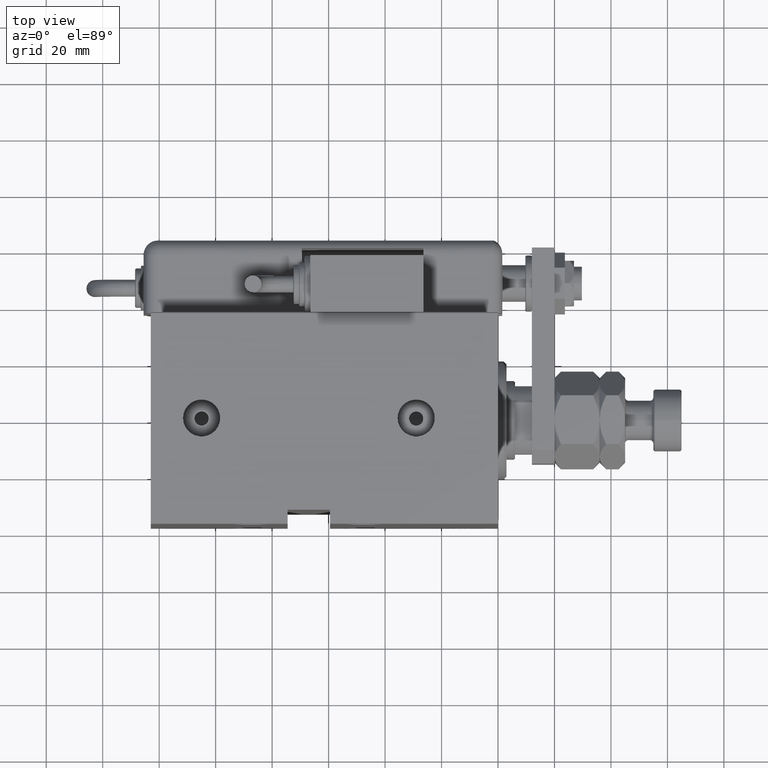
[diagram: clean part render]
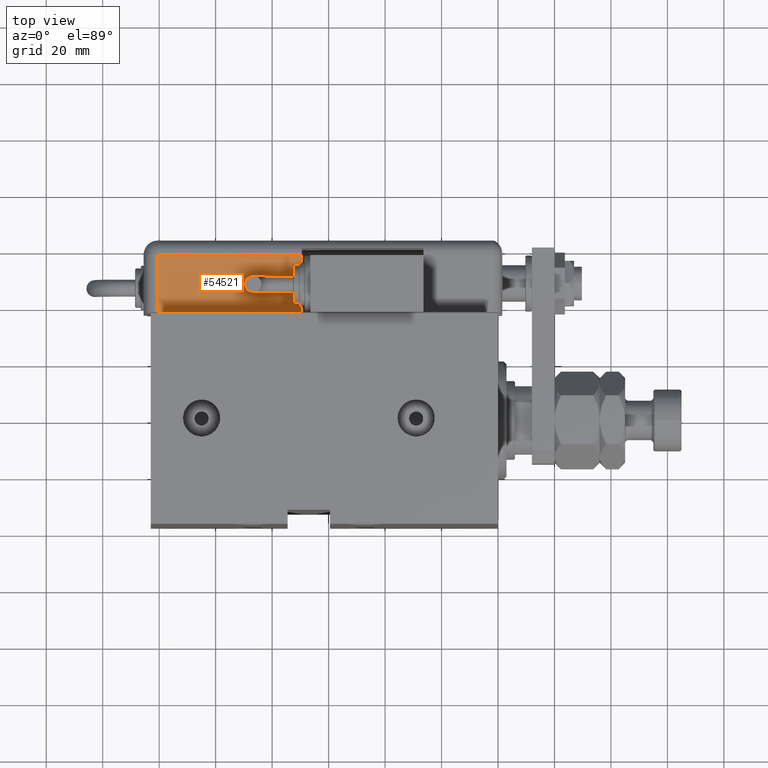
[diagram: same view with one face highlighted and labeled with its STEP entity id]
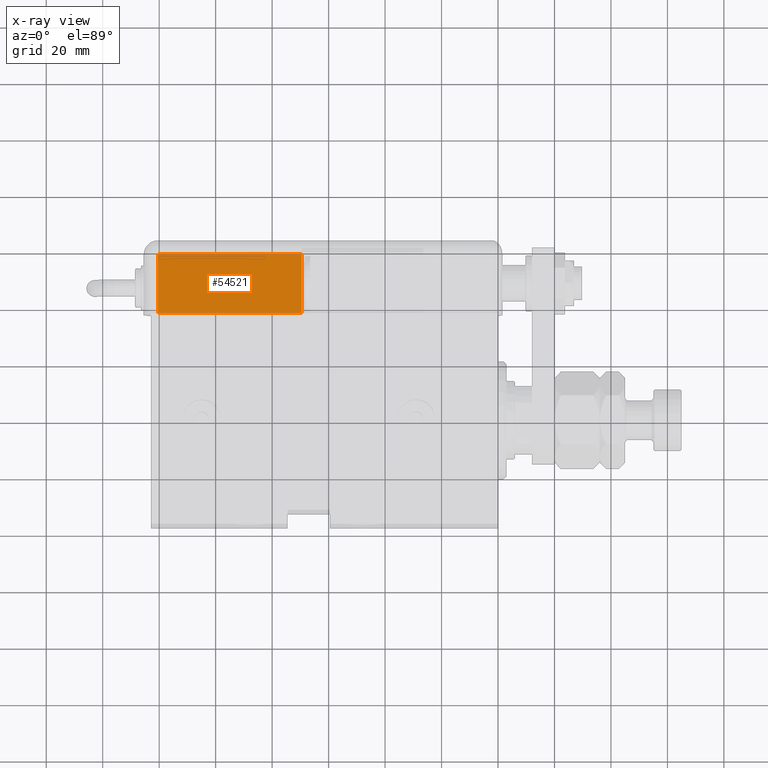
[diagram: x-ray of the same camera — body ghosted, the highlighted face saturated]
A machine part, top view. The second image highlights one B-rep face of the part: STEP entity #54521.
The next image is the same camera in x-ray: the body ghosted, the highlighted face saturated — about 0% of this face is hidden behind the body in this view.
In plain terms, the highlighted planar face has unit normal (0, 0, -1).
Its self-contained STEP definition (entity closure, byte-faithful):
#19 = VERTEX_POINT ( 'NONE', #40764 ) ;
#3383 = DIRECTION ( 'NONE',  ( 0.000000000000000000, -1.000000000000000000, 0.000000000000000000 ) ) ;
#4003 = LINE ( 'NONE', #46204, #25684 ) ;
#6605 = AXIS2_PLACEMENT_3D ( 'NONE', #61586, #52210, #41023 ) ;
#7364 = DIRECTION ( 'NONE',  ( 0.000000000000000000, -1.000000000000000000, 0.000000000000000000 ) ) ;
#8719 = LINE ( 'NONE', #55620, #37166 ) ;
#9427 = ORIENTED_EDGE ( 'NONE', *, *, #57126, .T. ) ;
#10534 = EDGE_CURVE ( 'NONE', #19, #34282, #8719, .T. ) ;
#10996 = VECTOR ( 'NONE', #26390, 1000.000000000000000 ) ;
#16274 = CARTESIAN_POINT ( 'NONE',  ( -28.99999999999999645, 20.79999999999998295, 5.000000000000004441 ) ) ;
#16928 = FACE_OUTER_BOUND ( 'NONE', #51042, .T. ) ;
#17443 = DIRECTION ( 'NONE',  ( -0.000000000000000000, -0.000000000000000000, -1.000000000000000000 ) ) ;
#17888 = CARTESIAN_POINT ( 'NONE',  ( -28.99999999999999645, 20.79999999999998295, 56.00000000000000711 ) ) ;
#25288 = CARTESIAN_POINT ( 'NONE',  ( -28.99999999999999645, -9.421223957302265857E-15, 5.000000000000004441 ) ) ;
#25303 = VECTOR ( 'NONE', #7364, 1000.000000000000000 ) ;
#25409 = ORIENTED_EDGE ( 'NONE', *, *, #30251, .T. ) ;
#25684 = VECTOR ( 'NONE', #3383, 1000.000000000000000 ) ;
#26390 = DIRECTION ( 'NONE',  ( 0.000000000000000000, 0.000000000000000000, -1.000000000000000000 ) ) ;
#30251 = EDGE_CURVE ( 'NONE', #40592, #40849, #55493, .T. ) ;
#34282 = VERTEX_POINT ( 'NONE', #25288 ) ;
#35681 = ORIENTED_EDGE ( 'NONE', *, *, #10534, .F. ) ;
#37166 = VECTOR ( 'NONE', #17443, 1000.000000000000000 ) ;
#40592 = VERTEX_POINT ( 'NONE', #17888 ) ;
#40764 = CARTESIAN_POINT ( 'NONE',  ( -28.99999999999999645, -9.421223957302264279E-15, 56.00000000000000711 ) ) ;
#40849 = VERTEX_POINT ( 'NONE', #16274 ) ;
#41023 = DIRECTION ( 'NONE',  ( -0.000000000000000000, 0.000000000000000000, -1.000000000000000000 ) ) ;
#42513 = PLANE ( 'NONE',  #6605 ) ;
#42832 = EDGE_CURVE ( 'NONE', #40592, #19, #55200, .T. ) ;
#46204 = CARTESIAN_POINT ( 'NONE',  ( -28.99999999999999645, -1.040834085586084257E-14, 5.000000000000004441 ) ) ;
#51042 = EDGE_LOOP ( 'NONE', ( #35681, #54145, #25409, #9427 ) ) ;
#51738 = CARTESIAN_POINT ( 'NONE',  ( -28.99999999999999645, 20.79999999999998295, 124.0000000000000000 ) ) ;
#52210 = DIRECTION ( 'NONE',  ( 1.000000000000000000, 0.000000000000000000, -0.000000000000000000 ) ) ;
#54145 = ORIENTED_EDGE ( 'NONE', *, *, #42832, .F. ) ;
#54521 = ADVANCED_FACE ( 'NONE', ( #16928 ), #42513, .F. ) ;
#54585 = CARTESIAN_POINT ( 'NONE',  ( -28.99999999999999645, 22.99999999999998934, 56.00000000000000711 ) ) ;
#55200 = LINE ( 'NONE', #54585, #25303 ) ;
#55493 = LINE ( 'NONE', #51738, #10996 ) ;
#55620 = CARTESIAN_POINT ( 'NONE',  ( -28.99999999999999645, -9.421223957302265857E-15, 124.0000000000000000 ) ) ;
#57126 = EDGE_CURVE ( 'NONE', #40849, #34282, #4003, .T. ) ;
#61586 = CARTESIAN_POINT ( 'NONE',  ( -28.99999999999999645, 25.79999999999998295, 124.0000000000000000 ) ) ;